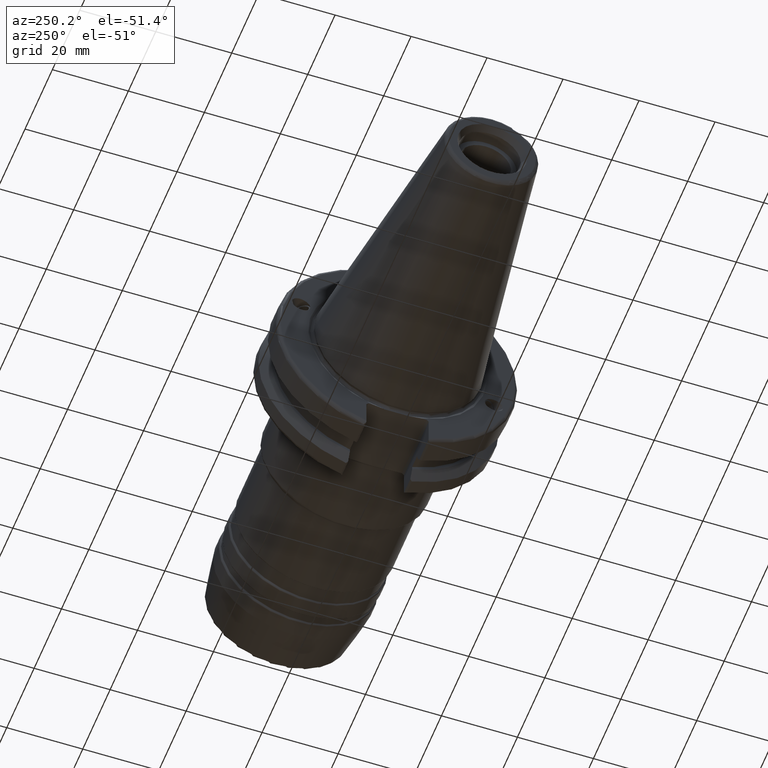
[diagram: clean part render]
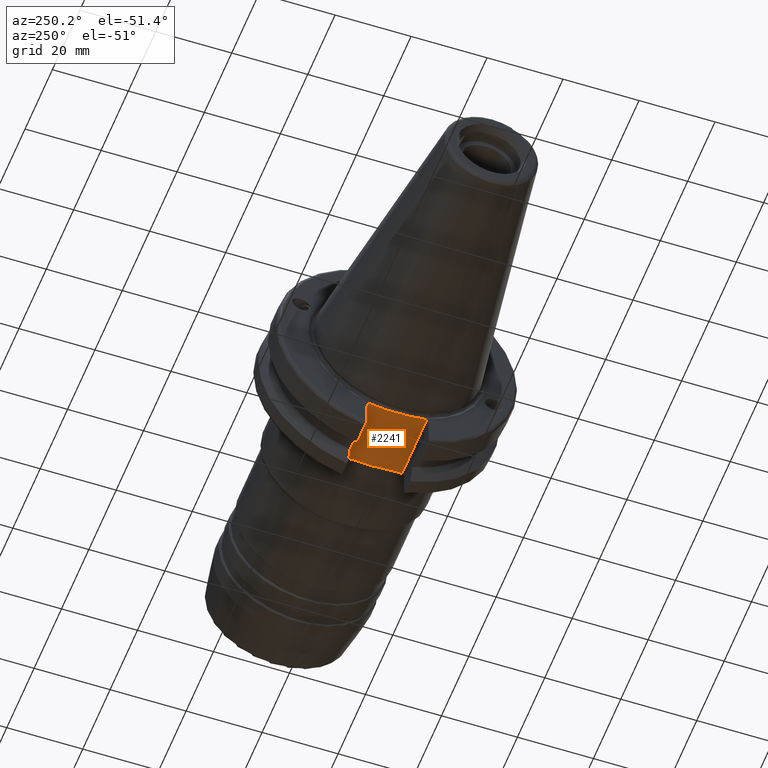
[diagram: same view with one face highlighted and labeled with its STEP entity id]
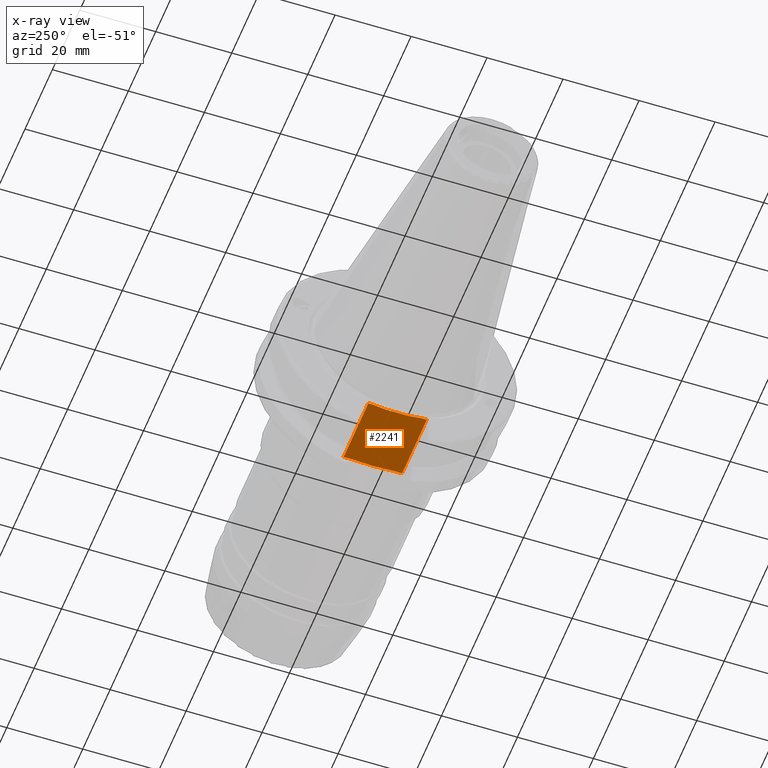
[diagram: x-ray of the same camera — body ghosted, the highlighted face saturated]
A machine part, auxiliary view. The second image highlights one B-rep face of the part: STEP entity #2241.
The next image is the same camera in x-ray: the body ghosted, the highlighted face saturated — about 0% of this face is hidden behind the body in this view.
In plain terms, the highlighted planar face has unit normal (0, 0, 1).
Its self-contained STEP definition (entity closure, byte-faithful):
#29=(
BOUNDED_CURVE()
B_SPLINE_CURVE(2,(#4298,#4299,#4300),.UNSPECIFIED.,.F.,.F.)
B_SPLINE_CURVE_WITH_KNOTS((3,3),(0.,0.339841691449478),.UNSPECIFIED.)
CURVE()
GEOMETRIC_REPRESENTATION_ITEM()
RATIONAL_B_SPLINE_CURVE((1.,1.00266518417081,1.))
REPRESENTATION_ITEM('')
);
#30=(
BOUNDED_CURVE()
B_SPLINE_CURVE(2,(#4303,#4304,#4305),.UNSPECIFIED.,.F.,.F.)
B_SPLINE_CURVE_WITH_KNOTS((3,3),(0.,0.339841691449478),.UNSPECIFIED.)
CURVE()
GEOMETRIC_REPRESENTATION_ITEM()
RATIONAL_B_SPLINE_CURVE((1.,1.00266518417081,1.))
REPRESENTATION_ITEM('')
);
#73=PLANE('',#2547);
#146=B_SPLINE_CURVE_WITH_KNOTS('',3,(#3604,#3605,#3606,#3607,#3608,#3609),
 .UNSPECIFIED.,.F.,.F.,(4,2,4),(1.72596271882624,2.07497455326111,2.23850423752741),
 .UNSPECIFIED.);
#147=B_SPLINE_CURVE_WITH_KNOTS('',3,(#3612,#3613,#3614,#3615,#3616,#3617),
 .UNSPECIFIED.,.F.,.F.,(4,2,4),(1.21342120012506,1.37695088439136,1.72596271882624),
 .UNSPECIFIED.);
#255=FACE_OUTER_BOUND('',#377,.T.);
#377=EDGE_LOOP('',(#1965,#1966,#1967,#1968,#1969,#1970,#1971,#1972,#1973,
#1974,#1975));
#462=LINE('',#4092,#567);
#471=LINE('',#4110,#576);
#490=LINE('',#4262,#595);
#491=LINE('',#4266,#596);
#495=LINE('',#4294,#600);
#496=LINE('',#4296,#601);
#497=LINE('',#4302,#602);
#567=VECTOR('',#3101,10.);
#576=VECTOR('',#3112,10.);
#595=VECTOR('',#3161,10.);
#596=VECTOR('',#3164,10.);
#600=VECTOR('',#3198,10.);
#601=VECTOR('',#3201,10.);
#602=VECTOR('',#3202,10.);
#880=VERTEX_POINT('',#3601);
#881=VERTEX_POINT('',#3603);
#882=VERTEX_POINT('',#3610);
#986=VERTEX_POINT('',#4091);
#994=VERTEX_POINT('',#4108);
#1021=VERTEX_POINT('',#4259);
#1022=VERTEX_POINT('',#4261);
#1023=VERTEX_POINT('',#4263);
#1024=VERTEX_POINT('',#4265);
#1034=VERTEX_POINT('',#4297);
#1035=VERTEX_POINT('',#4301);
#1159=EDGE_CURVE('',#881,#880,#146,.F.);
#1161=EDGE_CURVE('',#880,#882,#147,.F.);
#1299=EDGE_CURVE('',#881,#986,#462,.T.);
#1309=EDGE_CURVE('',#994,#882,#471,.T.);
#1349=EDGE_CURVE('',#1021,#1022,#490,.T.);
#1351=EDGE_CURVE('',#1023,#1024,#491,.T.);
#1365=EDGE_CURVE('',#986,#1021,#495,.T.);
#1366=EDGE_CURVE('',#1024,#994,#496,.T.);
#1367=EDGE_CURVE('',#1034,#1023,#29,.T.);
#1368=EDGE_CURVE('',#1035,#1034,#497,.T.);
#1369=EDGE_CURVE('',#1022,#1035,#30,.T.);
#1965=ORIENTED_EDGE('',*,*,#1365,.F.);
#1966=ORIENTED_EDGE('',*,*,#1299,.F.);
#1967=ORIENTED_EDGE('',*,*,#1159,.T.);
#1968=ORIENTED_EDGE('',*,*,#1161,.T.);
#1969=ORIENTED_EDGE('',*,*,#1309,.F.);
#1970=ORIENTED_EDGE('',*,*,#1366,.F.);
#1971=ORIENTED_EDGE('',*,*,#1351,.F.);
#1972=ORIENTED_EDGE('',*,*,#1367,.F.);
#1973=ORIENTED_EDGE('',*,*,#1368,.F.);
#1974=ORIENTED_EDGE('',*,*,#1369,.F.);
#1975=ORIENTED_EDGE('',*,*,#1349,.F.);
#2241=ADVANCED_FACE('',(#255),#73,.F.);
#2547=AXIS2_PLACEMENT_3D('',#4295,#3199,#3200);
#3101=DIRECTION('',(0.,1.,0.));
#3112=DIRECTION('',(0.,1.,0.));
#3161=DIRECTION('',(0.,-1.,0.));
#3164=DIRECTION('',(0.,-1.,0.));
#3198=DIRECTION('',(-1.,-1.16558847729675E-16,0.));
#3199=DIRECTION('center_axis',(0.,0.,1.));
#3200=DIRECTION('ref_axis',(1.,0.,0.));
#3201=DIRECTION('',(1.,0.,0.));
#3202=DIRECTION('',(0.,-1.,0.));
#3601=CARTESIAN_POINT('',(19.2900657923215,-1.52262876111465E-15,-22.6));
#3603=CARTESIAN_POINT('',(19.05,5.45916660306312,-22.6));
#3604=CARTESIAN_POINT('Ctrl Pts',(19.2900657923215,-4.16333634234434E-16,
-22.6));
#3605=CARTESIAN_POINT('Ctrl Pts',(19.2900657923215,1.16337278144958,-22.6));
#3606=CARTESIAN_POINT('Ctrl Pts',(19.1815308025276,2.55519472595254,-22.6));
#3607=CARTESIAN_POINT('Ctrl Pts',(19.0793249412955,4.26060658551474,-22.6));
#3608=CARTESIAN_POINT('Ctrl Pts',(19.05,4.9140676555088,-22.6));
#3609=CARTESIAN_POINT('Ctrl Pts',(19.05,5.45916660306312,-22.6));
#3610=CARTESIAN_POINT('',(19.05,-5.45916660306312,-22.6));
#3612=CARTESIAN_POINT('Ctrl Pts',(19.05,-5.45916660306312,-22.6));
#3613=CARTESIAN_POINT('Ctrl Pts',(19.05,-4.9140676555088,-22.6));
#3614=CARTESIAN_POINT('Ctrl Pts',(19.0793249412955,-4.26060658551474,-22.6));
#3615=CARTESIAN_POINT('Ctrl Pts',(19.1815308025276,-2.55519472595254,-22.6));
#3616=CARTESIAN_POINT('Ctrl Pts',(19.2900657923215,-1.16337278144958,-22.6));
#3617=CARTESIAN_POINT('Ctrl Pts',(19.2900657923215,5.55111512312578E-16,
-22.6));
#4091=CARTESIAN_POINT('',(19.05,7.69,-22.6));
#4092=CARTESIAN_POINT('',(19.05,-2.77555756156289E-16,-22.6));
#4108=CARTESIAN_POINT('',(19.05,-7.69,-22.6));
#4110=CARTESIAN_POINT('',(19.05,-2.77555756156289E-16,-22.6));
#4259=CARTESIAN_POINT('',(1.,7.69,-22.6));
#4261=CARTESIAN_POINT('',(0.999999999999997,6.4412731660752,-22.6));
#4262=CARTESIAN_POINT('',(1.,15.875,-22.6));
#4263=CARTESIAN_POINT('',(1.,-6.44127316607517,-22.6));
#4265=CARTESIAN_POINT('',(1.,-7.69,-22.6));
#4266=CARTESIAN_POINT('',(1.,15.875,-22.6));
#4294=CARTESIAN_POINT('',(7.81,7.69,-22.6));
#4295=CARTESIAN_POINT('Origin',(14.62,-5.55111512312578E-16,-22.6));
#4296=CARTESIAN_POINT('',(17.335,-7.69,-22.6));
#4297=CARTESIAN_POINT('',(1.4,-3.06715581894774,-22.6));
#4298=CARTESIAN_POINT('Ctrl Pts',(1.4,-3.06715581894779,-22.6));
#4299=CARTESIAN_POINT('Ctrl Pts',(1.27097107950098,-4.7289737297758,-22.6));
#4300=CARTESIAN_POINT('Ctrl Pts',(1.,-6.44127316607519,-22.6));
#4301=CARTESIAN_POINT('',(1.4,3.06715581894774,-22.6));
#4302=CARTESIAN_POINT('',(1.4,11.4035898384862,-22.6));
#4303=CARTESIAN_POINT('Ctrl Pts',(1.,6.44127316607519,-22.6));
#4304=CARTESIAN_POINT('Ctrl Pts',(1.27097107950098,4.7289737297758,-22.6));
#4305=CARTESIAN_POINT('Ctrl Pts',(1.4,3.06715581894779,-22.6));